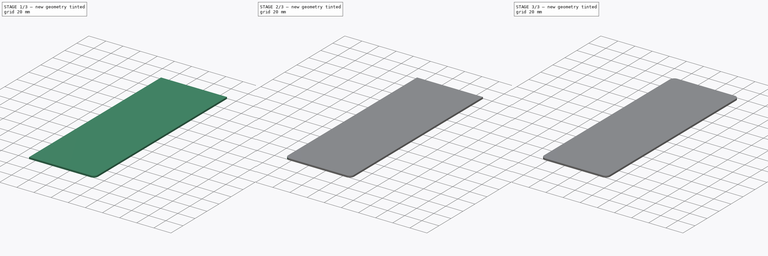
[diagram: build sequence overview — one tinted view per stage of 3, left to right]
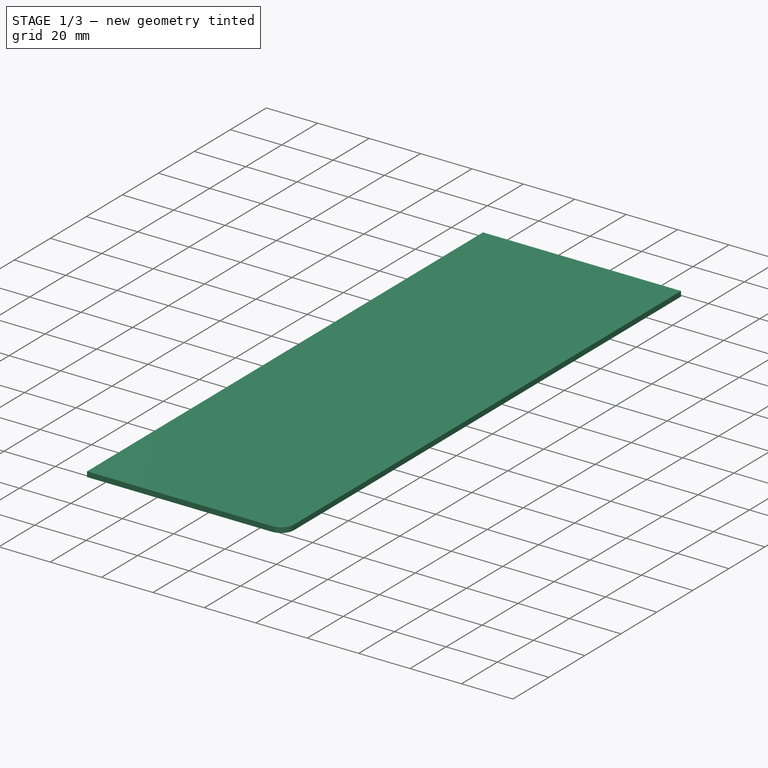
[diagram: stage 1 of 3 — iso view after this stage's code; geometry added in this stage tinted green]
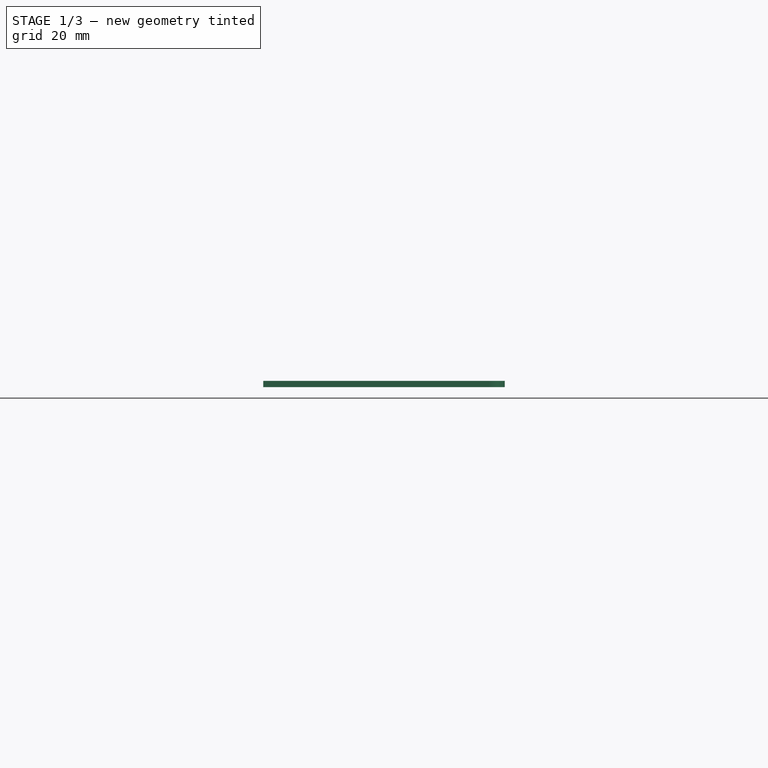
[diagram: stage 1 of 3 — front view after this stage's code; geometry added in this stage tinted green]
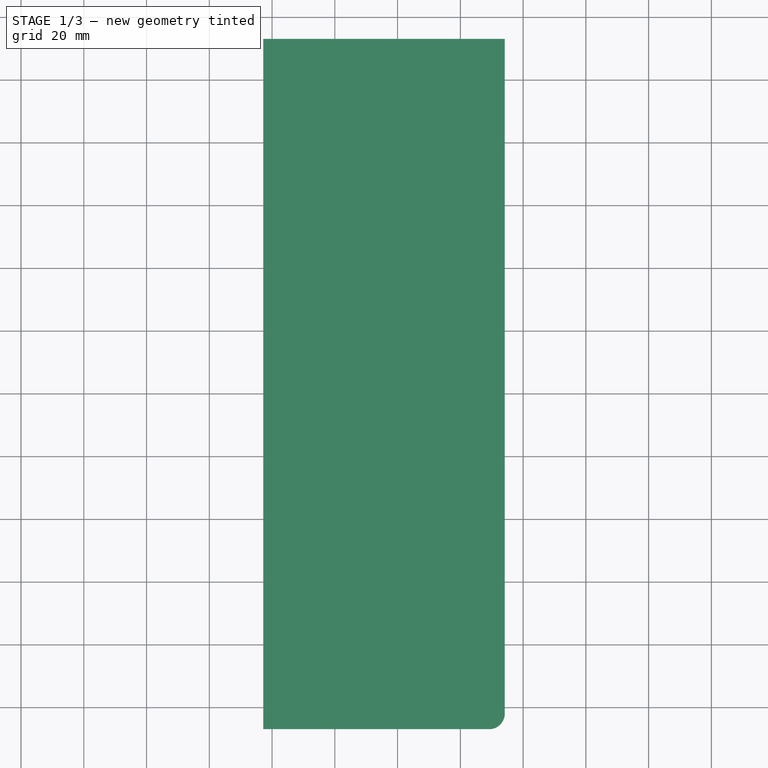
[diagram: stage 1 of 3 — top view after this stage's code; geometry added in this stage tinted green]
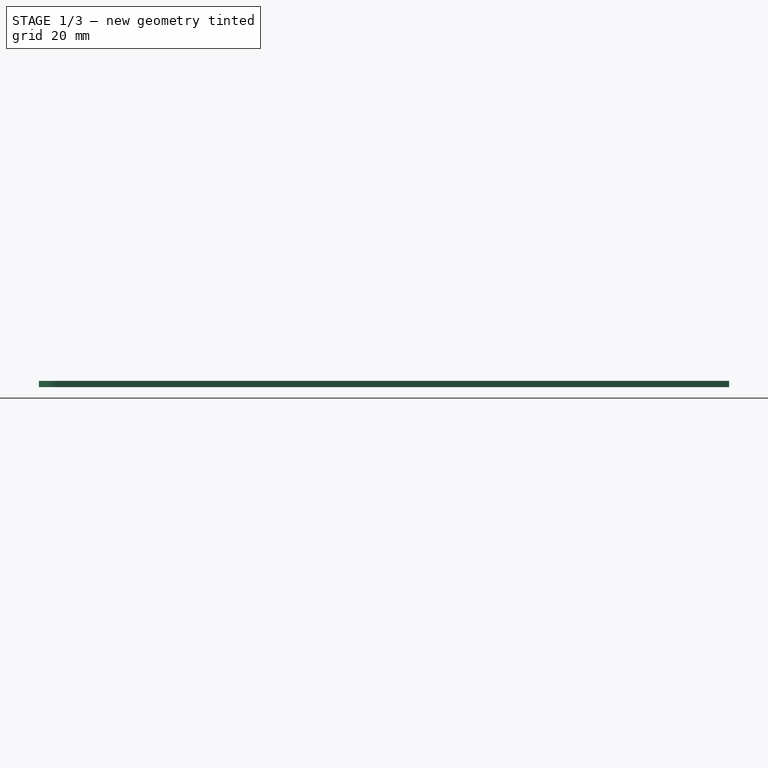
[diagram: stage 1 of 3 — right view after this stage's code; geometry added in this stage tinted green]
FCSTD DOCUMENT  (FreeCAD 0.19R24267 (Git))
Label: Box Cover
License: All rights reserved
LicenseURL: http://en.wikipedia.org/wiki/All_rights_reserved
objects: PartDesign::Fillet×4, Sketcher::SketchObject×1, PartDesign::Pad×1, PartDesign::Body×1
note: 12 computed .brp shape members not serialized (recipe doc carries the construction recipe); baked Part::Feature solids carry a one-line shape summary decoded from their .brp

FEATURE [Sketcher::SketchObject] Sketch
  FullyConstrained = false
  MapMode = 5
  Support = -> [XY_Plane]
  sketch-geometry (4):
    g0: LineSegment StartX=-2.82843 StartY=113.091 StartZ=0 EndX=74.1716 EndY=113.091 EndZ=0
    g1: LineSegment StartX=74.1716 StartY=113.091 StartZ=0 EndX=74.1716 EndY=-106.909 EndZ=0
    g2: LineSegment StartX=74.1716 StartY=-106.909 StartZ=0 EndX=-2.82843 EndY=-106.909 EndZ=0
    g3: LineSegment StartX=-2.82843 StartY=-106.909 StartZ=0 EndX=-2.82843 EndY=113.091 EndZ=0
  constraints (10):
    c: Coincident(g0,g1)
    c: Coincident(g1,g2)
    c: Coincident(g2,g3)
    c: Coincident(g3,g0)
    c: Horizontal(g0)
    c: Horizontal(g2)
    c: Vertical(g1)
    c: Vertical(g3)
    c: DistanceX(g0,g0) = 77
    c: DistanceY(g1,g1) = 220
FEATURE [PartDesign::Pad] Pad
  Direction = (1,1,1)
  Length = 2
  Length2 = 100
  Profile = -> Sketch
  Type = 0
FEATURE [PartDesign::Fillet] Fillet
  Base = -> Pad [Edge5]
  BaseFeature = -> Pad
  Radius = 5
  SupportTransform = false
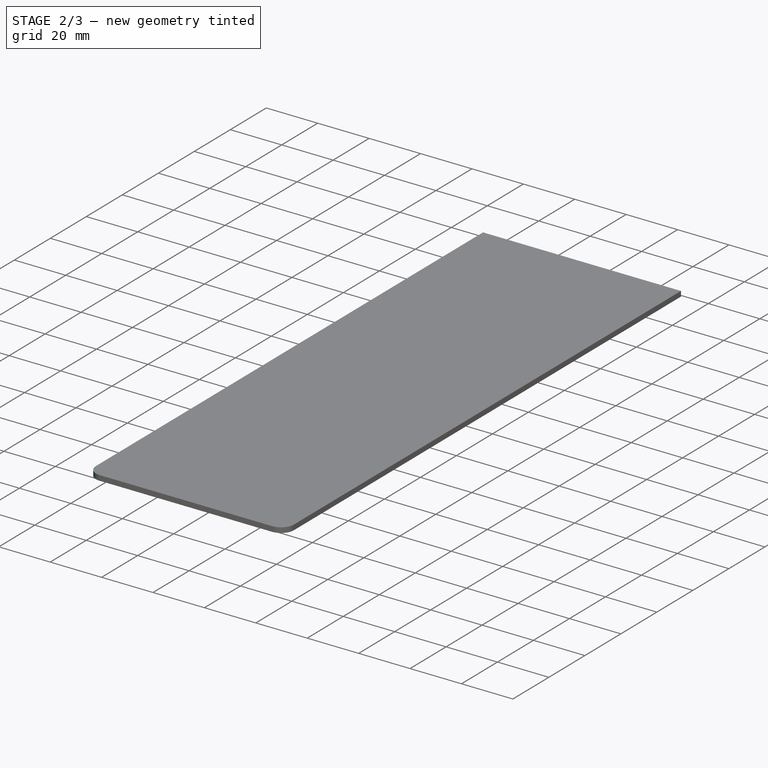
[diagram: stage 2 of 3 — iso view after this stage's code; geometry added in this stage tinted green]
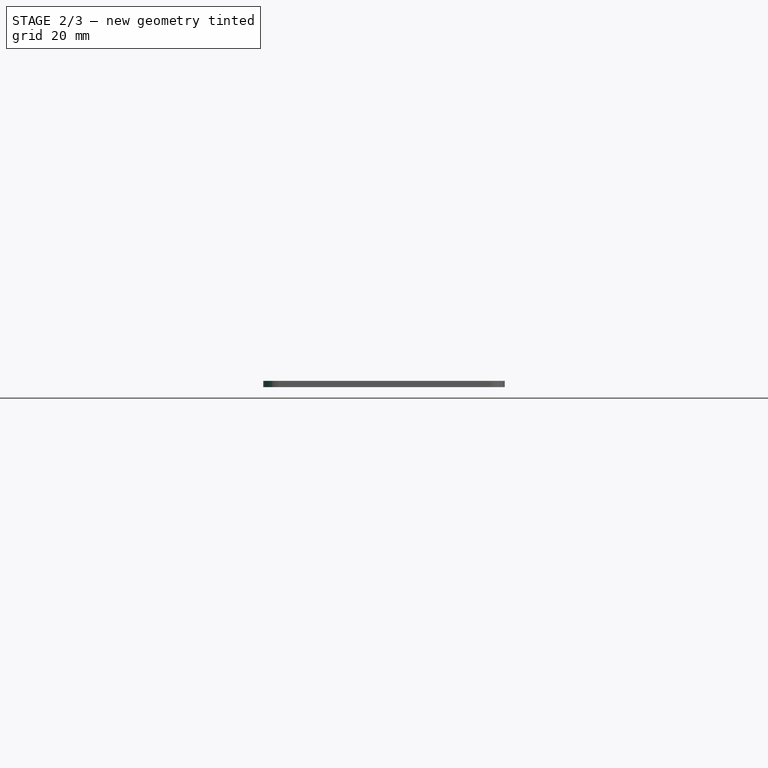
[diagram: stage 2 of 3 — front view after this stage's code; geometry added in this stage tinted green]
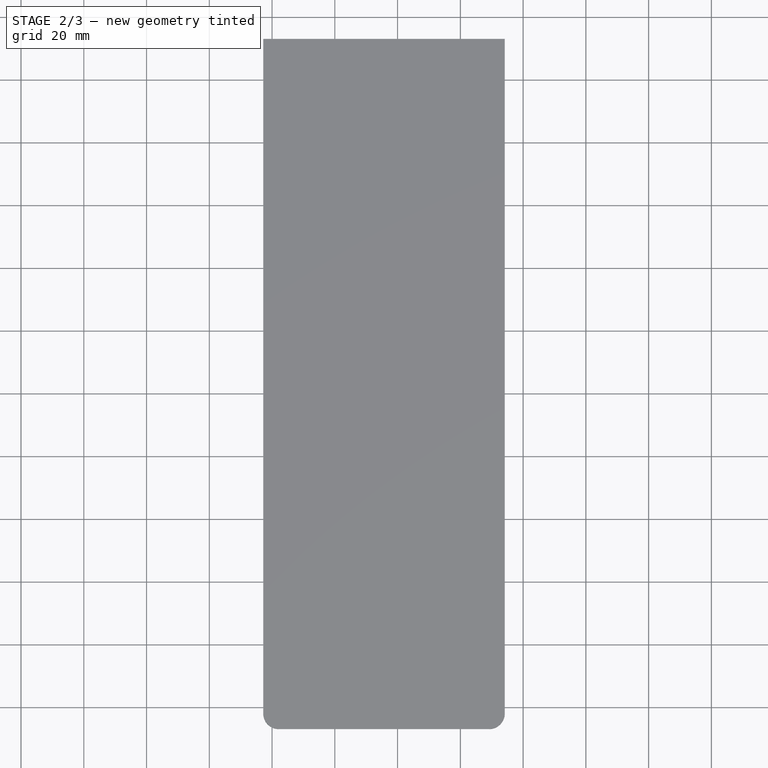
[diagram: stage 2 of 3 — top view after this stage's code; geometry added in this stage tinted green]
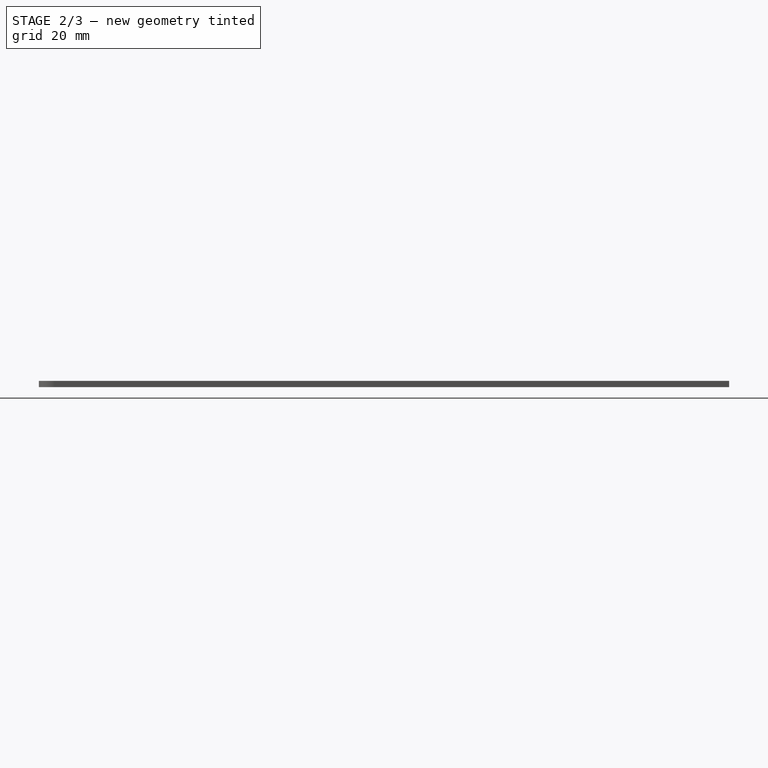
[diagram: stage 2 of 3 — right view after this stage's code; geometry added in this stage tinted green]
FEATURE [PartDesign::Fillet] Fillet001
  Base = -> Fillet [Edge15]
  BaseFeature = -> Fillet
  Radius = 5
  SupportTransform = false
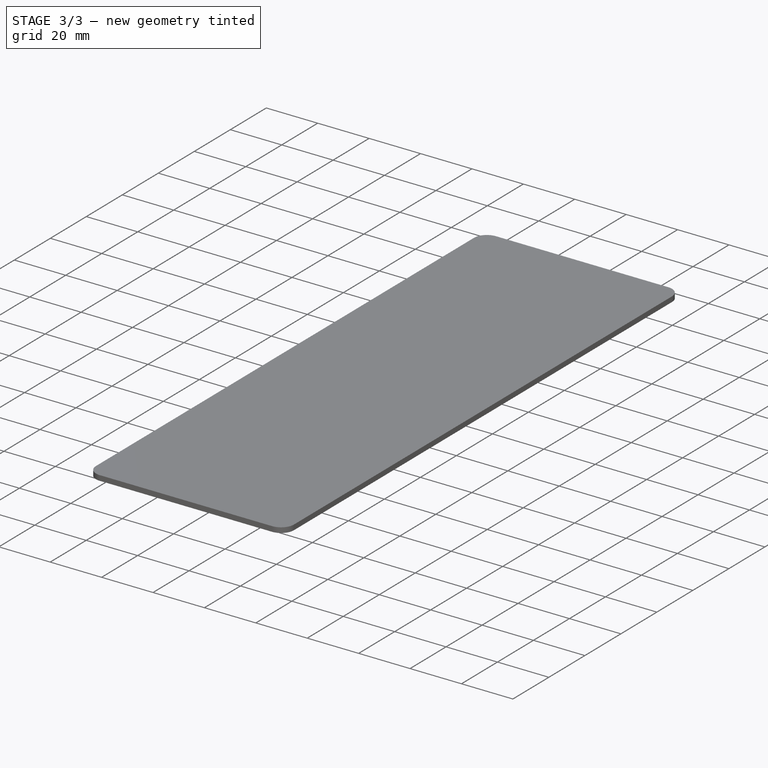
[diagram: stage 3 of 3 — iso view after this stage's code; geometry added in this stage tinted green]
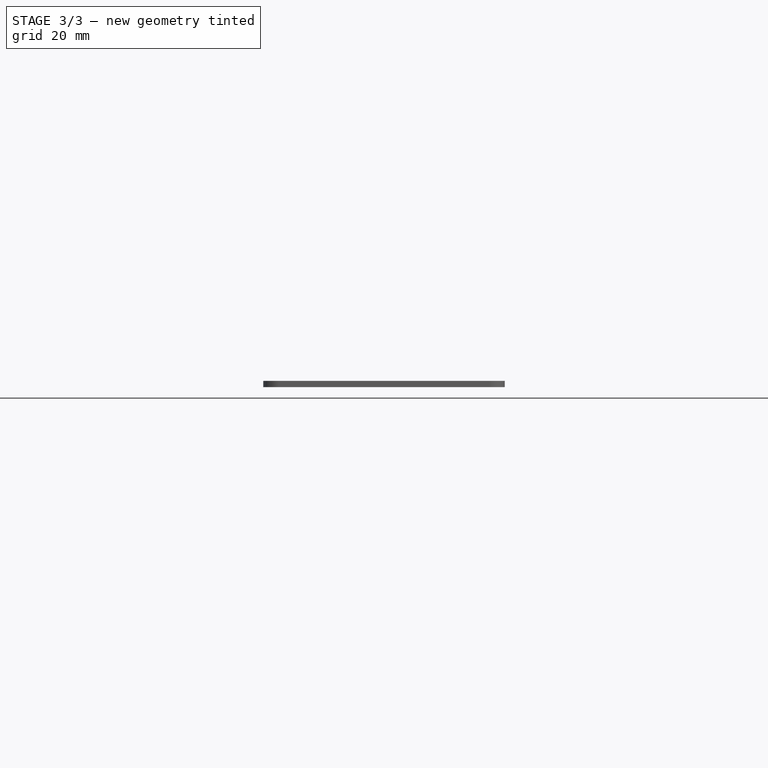
[diagram: stage 3 of 3 — front view after this stage's code; geometry added in this stage tinted green]
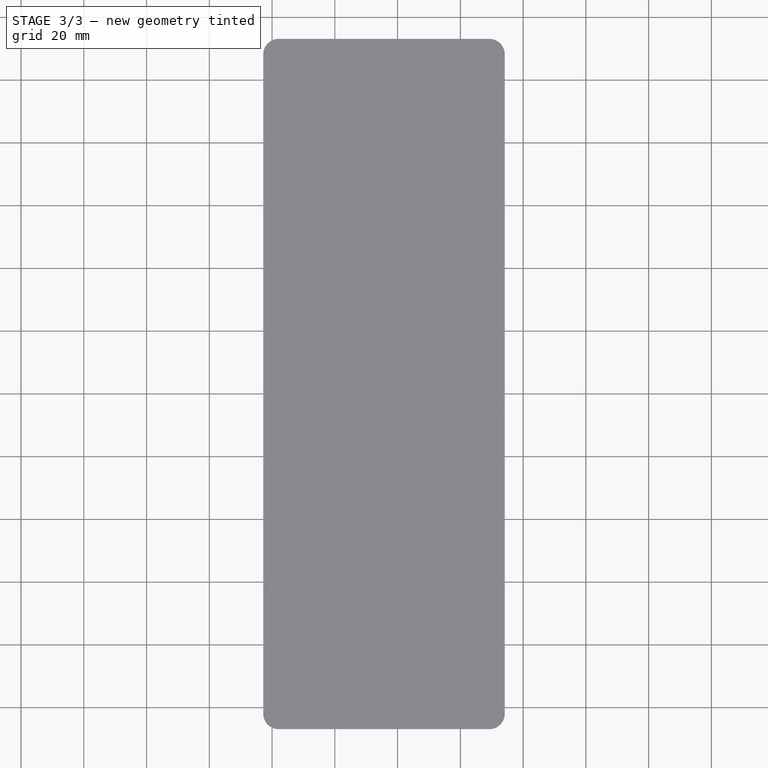
[diagram: stage 3 of 3 — top view after this stage's code; geometry added in this stage tinted green]
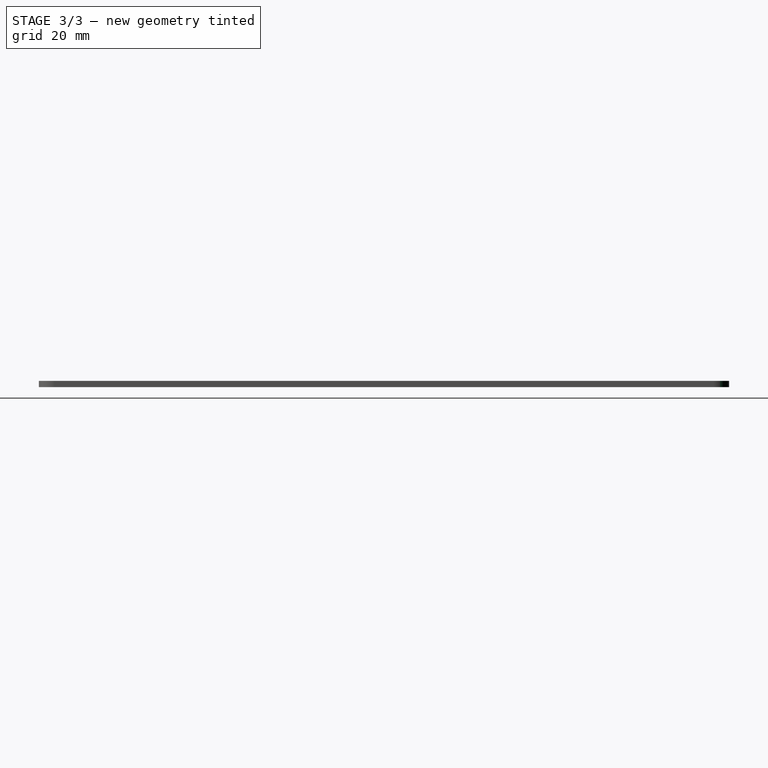
[diagram: stage 3 of 3 — right view after this stage's code; geometry added in this stage tinted green]
FEATURE [PartDesign::Fillet] Fillet002
  Base = -> Fillet001 [Edge14]
  BaseFeature = -> Fillet001
  Radius = 5
  SupportTransform = false
FEATURE [PartDesign::Fillet] Fillet003
  Base = -> Fillet002 [Edge15]
  BaseFeature = -> Fillet002
  Radius = 5
  SupportTransform = false
FEATURE [PartDesign::Body] Body
  Group = -> [Sketch,Pad,Fillet,Fillet001,Fillet002,Fillet003]
  Origin = -> Origin
  Tip = -> Fillet003
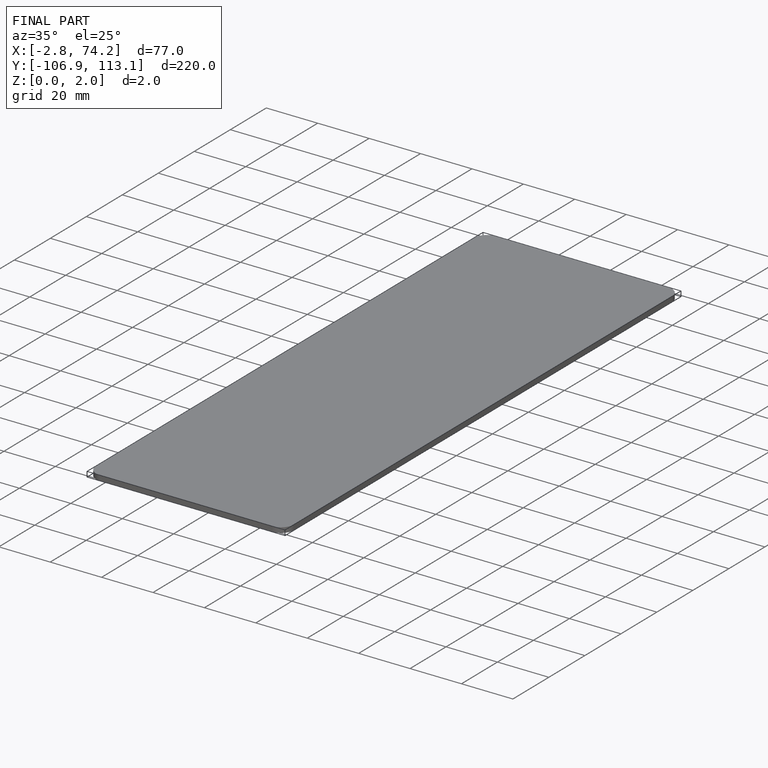
[diagram: finished part — iso view with bounding-box wireframe]
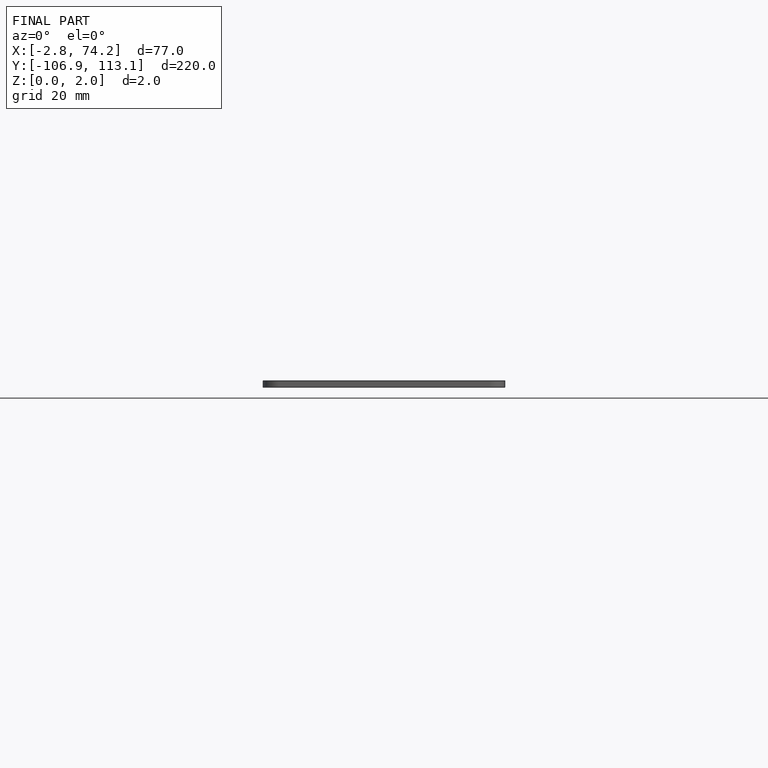
[diagram: finished part — front view with bounding-box wireframe]
